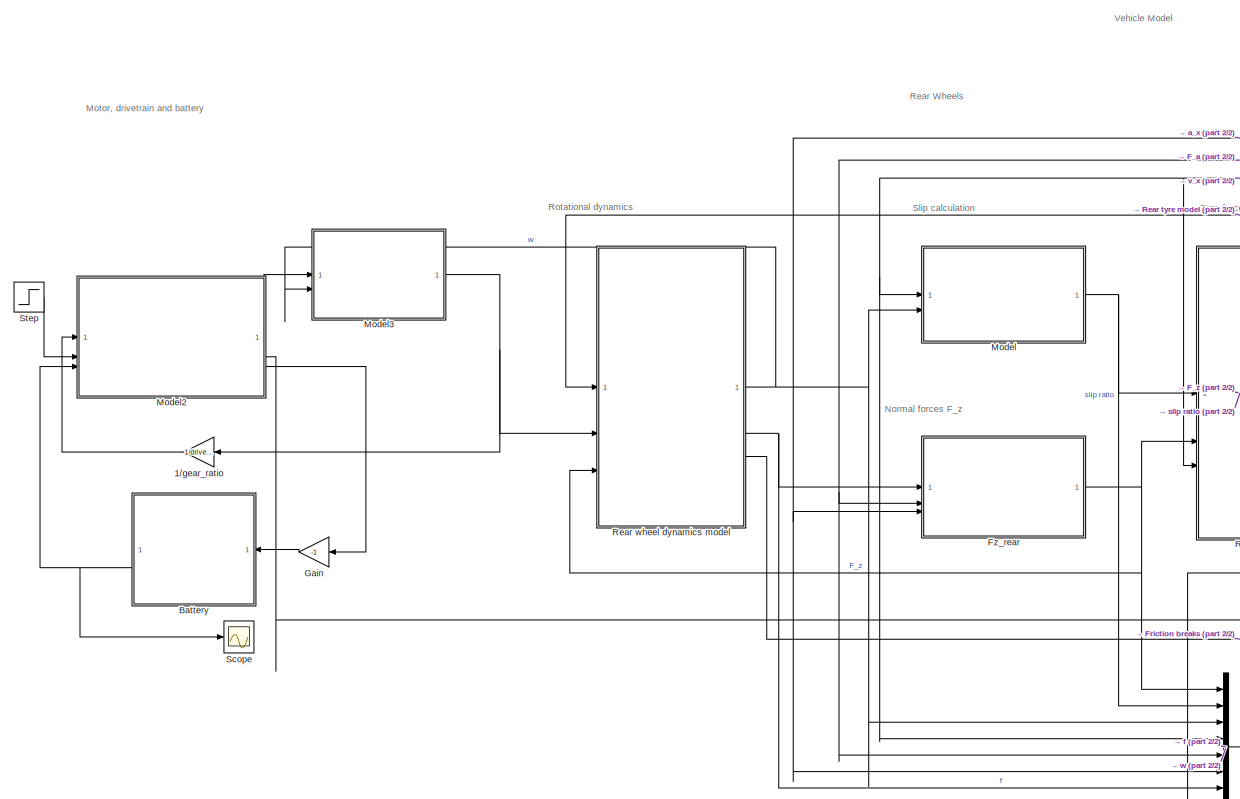
[diagram: root canvas - part 1/2, left side, full height]
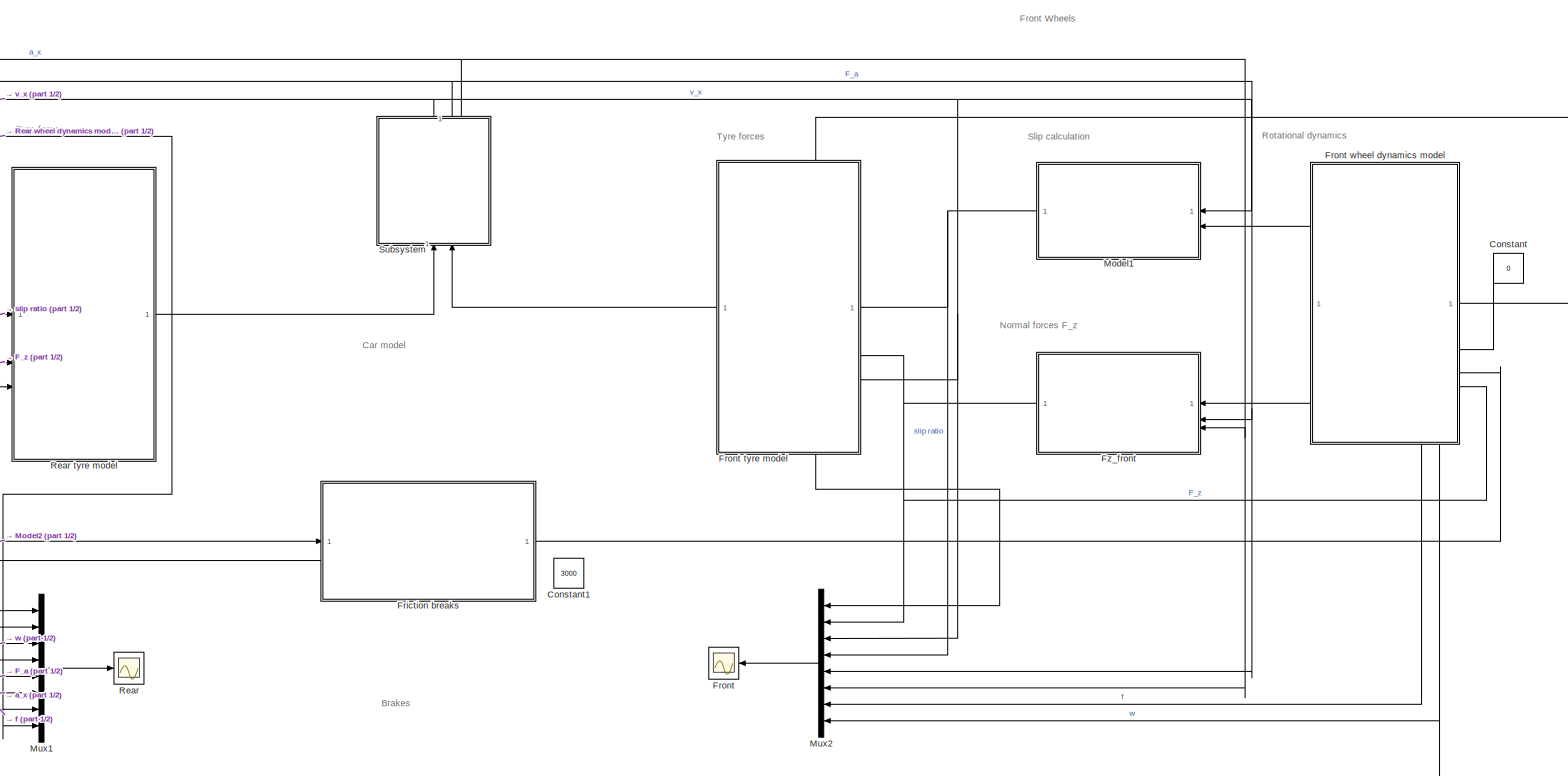
[diagram: root canvas - part 2/2, right side, full height]
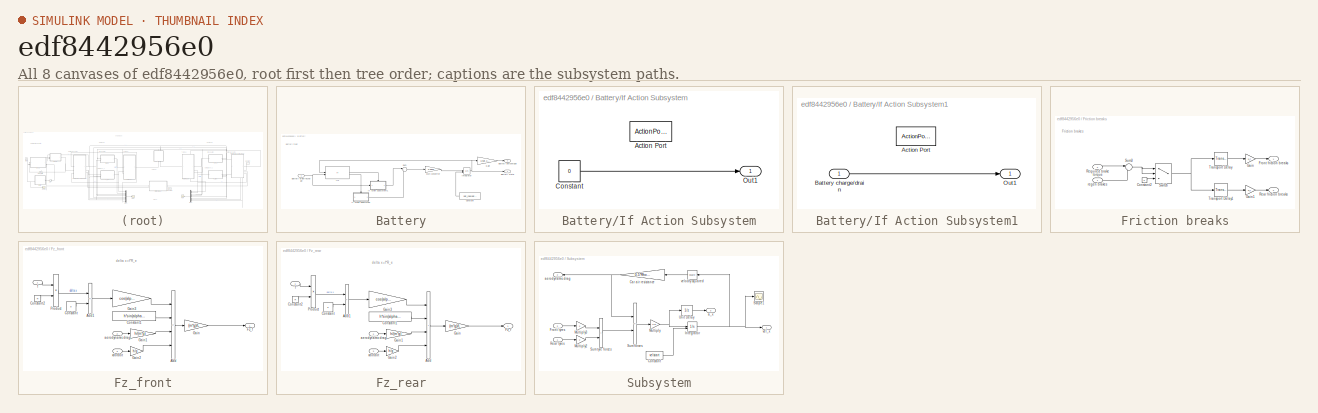
[diagram: thumbnail index - all 8 canvases of the model, root first then tree order]
MODEL slx_edf8442956e0
KIND model
CONFIG AbsTol = auto
CONFIG EnableMultiTasking = off
CONFIG FixedStep = auto
CONFIG MaxStep = 1e-4
CONFIG MinStep = auto
CONFIG RelTol = 1e-3
CONFIG SampleTimeConstraint = Unconstrained
CONFIG SolverName = ode23t
CONFIG StartTime = 0.0
CONFIG StopTime = 60
BLOCK [Gain] 1//gear_ratio
  Gain = 1/drivetrain_gain
  NameLocation = top
BLOCK [SubSystem] Battery
  NameLocation = top
BLOCK [Inport] Battery/Battery drain//recharge
BLOCK [Outport] Battery/Battery percentage
  Port = 2
BLOCK [Outport] Battery/Battery state
BLOCK [Constant] Battery/Constant
  NameLocation = top
  Value = bat_cap*bat_per
BLOCK [Gain] Battery/Gain
  Gain = 1/bat_cap
BLOCK [SubSystem] Battery/If Action Subsystem
  TreatAsAtomicUnit = on
BLOCK [ActionPort] Battery/If Action Subsystem/Action Port
  ActionPortLabel = else
BLOCK [Constant] Battery/If Action Subsystem/Constant
  Value = 0
BLOCK [Outport] Battery/If Action Subsystem/Out1
BLOCK [SubSystem] Battery/If Action Subsystem1
  TreatAsAtomicUnit = on
BLOCK [ActionPort] Battery/If Action Subsystem1/Action Port
  ActionPortLabel = if((u1 <= 0 & u2 >= 0) | (u1 >= 0 & u2<= bat_cap))
BLOCK [Inport] Battery/If Action Subsystem1/Battery charge//drain
BLOCK [Outport] Battery/If Action Subsystem1/Out1
BLOCK [If] Battery/If1
  IfExpression = (u1 <= 0 & u2 >= 0) | (u1 >= 0 & u2<= bat_cap)
  NumInputs = 2
BLOCK [Integrator] Battery/Integrator
  InitialConditionSource = external
BLOCK [Sum] Battery/Sum
  Inputs = |++
BLOCK [Gain] Battery/kWh converter
  Gain = 1/3600
BLOCK [Constant] Constant
  NameLocation = top
  Value = 0
BLOCK [Constant] Constant1
  NameLocation = top
  Value = 3000
BLOCK [SubSystem] Friction breaks
  PortSchema = {"entries":[{"content":{"sides":[{"content":{"connectorIds":["Out2","In1"]},"type":"ConnectorPlacement.EquallySpacedRectSide","uuid":"4a3dc718-d1bd-449b-9739-5f6ec97173fd"},{"content":{"connectorIds":["Out1","In2"],"side":"RIGHT"},"type":"ConnectorPlacement.EquallySpacedRectSide","uuid":"f113ab5a-fdc2-44b8-a57e-3f1ebdb36388"},{"content":{"side":"TOP"},"type":"ConnectorPlacement.EquallySpacedRectSi...<+361ch>
BLOCK [Constant] Friction breaks/Constant2
  Value = 0
BLOCK [Outport] Friction breaks/Front friction breaks
BLOCK [Gain] Friction breaks/Gain
  Gain = b_f
BLOCK [Gain] Friction breaks/Gain1
  Gain = b_r
BLOCK [Outport] Friction breaks/Rear friction breaks
  Port = 2
BLOCK [Inport] Friction breaks/Required brake torque
  Port = 2
BLOCK [Sum] Friction breaks/Sum3
  Inputs = |+-
BLOCK [Switch] Friction breaks/Switch
  Criteria = u2 > Threshold
  InputSameDT = off
  SaturateOnIntegerOverflow = off
BLOCK [TransportDelay] Friction breaks/Transport Delay
  DelayTime = tau_b
BLOCK [TransportDelay] Friction breaks/Transport Delay1
  DelayTime = tau_b
BLOCK [Inport] Friction breaks/regen brakes
BLOCK [Scope] Front
  Floating = off
  NumInputPorts = 1
  ScopeSpecificationString = Simulink.scopes.TimeScopeBlockCfg('CurrentConfiguration', extmgr.ConfigurationSet(extmgr.Configuration('Core','General UI',true),extmgr.Configuration('Core','Source UI',true),extmgr.Configuration('Sources','WiredSimulink',true,'DataLoggingVariableName','ScopeData1'),extmgr.Configuration('Visuals','Time Domain',true,'SerializedDisplays',{struct('MinYLimReal','-10.36243','MaxYLimReal','71.52717','YL...<+1807ch>
BLOCK [ModelReference] Front tyre model
  ModelNameDialog = Tyre_Pac96.slx
  ModelReferenceVersion = 9.39
  PortSchema = {"entries":[{"content":{"sides":[{"content":{"connectorIds":["In2","In3","In1"]},"type":"ConnectorPlacement.EquallySpacedRectSide","uuid":"128c3a03-d455-473f-b97a-1271ed5e183e"},{"content":{"connectorIds":["Out1"],"side":"RIGHT"},"type":"ConnectorPlacement.EquallySpacedRectSide","uuid":"90c93895-2958-47ec-b7e2-2fd8dd55f75c"},{"content":{"side":"TOP"},"type":"ConnectorPlacement.EquallySpacedRectSid...<+234ch>
BLOCK [ModelReference] Front wheel dynamics model
  ModelNameDialog = rotational_wheel_dynamics.slx
  ModelReferenceVersion = 1.106
  PortSchema = {"entries":[{"content":{"sides":[{"content":{"connectorIds":["In4","In3","In2","In1"]},"type":"ConnectorPlacement.EquallySpacedRectSide","uuid":"8e9cd13c-7748-4dfa-a955-38f4d392920c"},{"content":{"connectorIds":["Out2","Out1"],"side":"RIGHT"},"type":"ConnectorPlacement.EquallySpacedRectSide","uuid":"81e5c474-d9e1-4061-825c-d1a8c8e14901"},{"content":{"side":"TOP"},"type":"ConnectorPlacement.Equally...<+247ch>
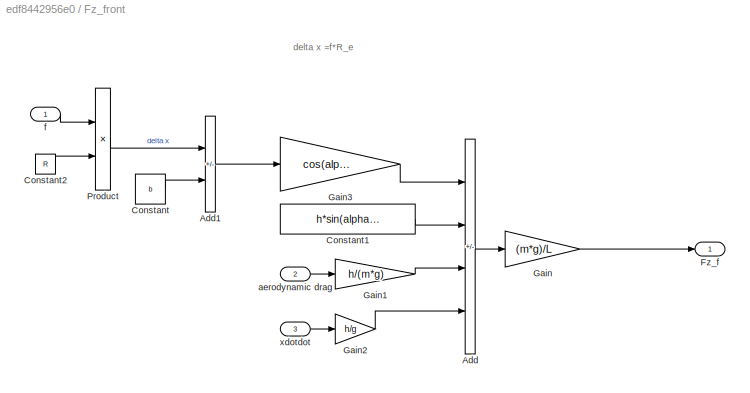
BLOCK [SubSystem] Fz_front
BLOCK [Sum] Fz_front/Add
  IconShape = rectangular
  Inputs = +---
BLOCK [Sum] Fz_front/Add1
  IconShape = rectangular
  Inputs = -+
BLOCK [Constant] Fz_front/Constant
  Value = b
BLOCK [Constant] Fz_front/Constant1
  Value = h*sin(alpha_slope)
BLOCK [Constant] Fz_front/Constant2
  Value = R
BLOCK [Outport] Fz_front/Fz_f
BLOCK [Gain] Fz_front/Gain
  Gain = (m*g)/L
BLOCK [Gain] Fz_front/Gain1
  Gain = h/(m*g)
BLOCK [Gain] Fz_front/Gain2
  Gain = h/g
BLOCK [Gain] Fz_front/Gain3
  Gain = cos(alpha_slope)
BLOCK [Product] Fz_front/Product
BLOCK [Inport] Fz_front/aerodynamic drag
  Port = 2
BLOCK [Inport] Fz_front/f
BLOCK [Inport] Fz_front/xdotdot
  Port = 3
BLOCK [SubSystem] Fz_rear
BLOCK [Sum] Fz_rear/Add
  IconShape = rectangular
  Inputs = ++++
BLOCK [Sum] Fz_rear/Add1
  IconShape = rectangular
BLOCK [Constant] Fz_rear/Constant
  Value = a
BLOCK [Constant] Fz_rear/Constant1
  Value = h*sin(alpha_slope)
BLOCK [Constant] Fz_rear/Constant2
  Value = R
BLOCK [Outport] Fz_rear/Fz_r
BLOCK [Gain] Fz_rear/Gain
  Gain = (m*g)/L
BLOCK [Gain] Fz_rear/Gain1
  Gain = h/(m*g)
BLOCK [Gain] Fz_rear/Gain2
  Gain = h/g
BLOCK [Gain] Fz_rear/Gain3
  Gain = cos(alpha_slope)
BLOCK [Product] Fz_rear/Product
BLOCK [Inport] Fz_rear/aerodynamic drag
  Port = 2
BLOCK [Inport] Fz_rear/f
BLOCK [Inport] Fz_rear/xdotdot
  Port = 3
BLOCK [Gain] Gain
  Gain = -1
  NameLocation = top
BLOCK [ModelReference] Model
  ModelNameDialog = slip_calc.slx
  ModelReferenceVersion = 1.56
BLOCK [ModelReference] Model1
  ModelNameDialog = slip_calc.slx
  ModelReferenceVersion = 1.56
  NameLocation = top
BLOCK [ModelReference] Model2
  ModelNameDialog = DC_motor.slx
  ModelReferenceVersion = 1.26
  PortSchema = {"entries":[{"content":{"sides":[{"content":{"connectorIds":["In2","In1","In3"]},"type":"ConnectorPlacement.EquallySpacedRectSide","uuid":"856ebdf3-b7b7-417f-9858-b4eab560afbe"},{"content":{"connectorIds":["Out1","Out2","Out3"],"side":"RIGHT"},"type":"ConnectorPlacement.EquallySpacedRectSide","uuid":"02573abb-4d18-4489-95c0-3c3e8424dddb"},{"content":{"side":"TOP"},"type":"ConnectorPlacement.Equall...<+248ch>
BLOCK [ModelReference] Model3
  ModelNameDialog = half_shaft.slx
  ModelReferenceVersion = 1.9
  PortSchema = {"entries":[{"content":{"sides":[{"content":{"connectorIds":["In2","In1"]},"type":"ConnectorPlacement.EquallySpacedRectSide","uuid":"2a87acde-a3e3-446f-b760-192272679fdf"},{"content":{"connectorIds":["Out1"],"side":"RIGHT"},"type":"ConnectorPlacement.EquallySpacedRectSide","uuid":"34dfae4c-dee8-4eab-a373-6b1516b3930c"},{"content":{"side":"TOP"},"type":"ConnectorPlacement.EquallySpacedRectSide","uu...<+228ch>
BLOCK [Mux] Mux1
  DisplayOption = bar
  Inputs = 8
BLOCK [Mux] Mux2
  DisplayOption = bar
  Inputs = 8
  NameLocation = top
BLOCK [Scope] Rear
  Floating = off
  NumInputPorts = 1
  ScopeSpecificationString = Simulink.scopes.TimeScopeBlockCfg('CurrentConfiguration', extmgr.ConfigurationSet(extmgr.Configuration('Core','General UI',true),extmgr.Configuration('Core','Source UI',true),extmgr.Configuration('Sources','WiredSimulink',true,'DataLoggingVariableName','ScopeData2'),extmgr.Configuration('Visuals','Time Domain',true,'SerializedDisplays',{struct('MinYLimReal','-1.03631','MaxYLimReal','46.82075','YLa...<+1809ch>
BLOCK [ModelReference] Rear tyre model
  ModelNameDialog = Tyre_Pac96.slx
  ModelReferenceVersion = 9.39
  PortSchema = {"entries":[{"content":{"sides":[{"content":{"connectorIds":["In1","In3","In2"]},"type":"ConnectorPlacement.EquallySpacedRectSide","uuid":"128c3a03-d455-473f-b97a-1271ed5e183e"},{"content":{"connectorIds":["Out1"],"side":"RIGHT"},"type":"ConnectorPlacement.EquallySpacedRectSide","uuid":"90c93895-2958-47ec-b7e2-2fd8dd55f75c"},{"content":{"side":"TOP"},"type":"ConnectorPlacement.EquallySpacedRectSid...<+234ch>
BLOCK [ModelReference] Rear wheel dynamics model
  ModelNameDialog = rotational_wheel_dynamics.slx
  ModelReferenceVersion = 1.106
BLOCK [Scope] Scope
  Floating = off
  NumInputPorts = 1
  ScopeSpecificationString = Simulink.scopes.TimeScopeBlockCfg('CurrentConfiguration', extmgr.ConfigurationSet(extmgr.Configuration('Core','General UI',true),extmgr.Configuration('Core','Source UI',true),extmgr.Configuration('Sources','WiredSimulink',true,'DataLoggingVariableName','ScopeData1'),extmgr.Configuration('Visuals','Time Domain',true,'SerializedDisplays',{struct('MinYLimReal','0.98431','MaxYLimReal','1.00174','YLabe...<+1455ch>
BLOCK [Step] Step
  After = 0
  Before = 400
  SampleTime = 0
  Time = 200
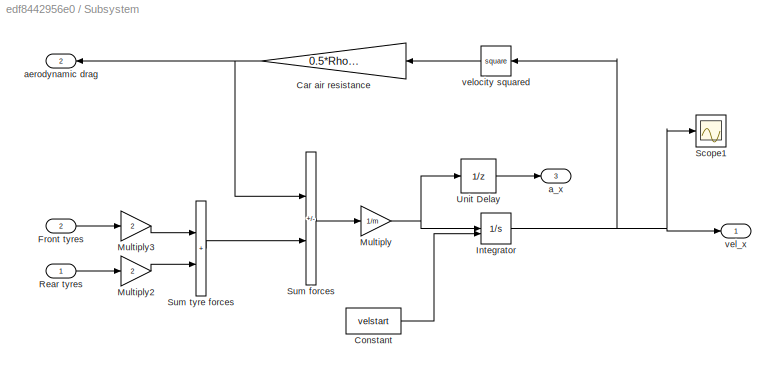
BLOCK [SubSystem] Subsystem
  NameLocation = right
BLOCK [Gain] Subsystem/Car air resistance
  Gain = 0.5*Rho*Cx*Af
  NameLocation = top
BLOCK [Constant] Subsystem/Constant
  Value = velstart
BLOCK [Inport] Subsystem/Front tyres
  Port = 2
BLOCK [Integrator] Subsystem/Integrator
  InitialConditionSource = external
BLOCK [Gain] Subsystem/Multiply
  Gain = 1/m
BLOCK [Gain] Subsystem/Multiply2
  Gain = 2
BLOCK [Gain] Subsystem/Multiply3
  Gain = 2
BLOCK [Inport] Subsystem/Rear tyres
BLOCK [Scope] Subsystem/Scope1
  Floating = off
  NumInputPorts = 1
  ScopeSpecificationString = Simulink.scopes.TimeScopeBlockCfg('CurrentConfiguration', extmgr.ConfigurationSet(extmgr.Configuration('Core','General UI',true),extmgr.Configuration('Core','Source UI',true),extmgr.Configuration('Sources','WiredSimulink',true,'DataLoggingVariableName','ScopeData1'),extmgr.Configuration('Visuals','Time Domain',true,'SerializedDisplays',{struct('MinYLimReal','1.61275','MaxYLimReal','3.15414','YLabe...<+1456ch>
BLOCK [Sum] Subsystem/Sum forces
  IconShape = rectangular
  Inputs = -+
BLOCK [Sum] Subsystem/Sum tyre forces
  IconShape = rectangular
BLOCK [UnitDelay] Subsystem/Unit Delay
  HasFrameUpgradeWarning = on
  SampleTime = -1
BLOCK [Outport] Subsystem/a_x
  Port = 3
BLOCK [Outport] Subsystem/aerodynamic drag
  NameLocation = top
  Port = 2
BLOCK [Outport] Subsystem/vel_x
BLOCK [Math] Subsystem/velocity squared
  NameLocation = top
  Operator = square
  RndMeth = Zero
  SignedPower = on
ANNOTATION (root): Normal forces F_z
ANNOTATION (root): Rotational dynamics
ANNOTATION (root): Car model
ANNOTATION (root): Slip calculation
ANNOTATION (root): Tyre forces
ANNOTATION (root): Brakes
ANNOTATION (root): Front Wheels
ANNOTATION (root): Motor, drivetrain and battery
ANNOTATION (root): Rear Wheels
ANNOTATION (root): Vehicle Model
ANNOTATION Battery: Battery itself
ANNOTATION Friction breaks: Friction brakes
ANNOTATION Fz_front: delta x =f*R_e
ANNOTATION Fz_rear: delta x =f*R_e
LINE 1//gear_ratio:1 -> Model2:1
NET Battery/Battery drain//recharge:1 -> Battery/If Action Subsystem1:1, Battery/If1:2
LINE Battery/Constant:1 -> Battery/Integrator:2
LINE Battery/Gain:1 -> Battery/Battery percentage:1
LINE Battery/If Action Subsystem/Constant:1 -> Battery/If Action Subsystem/Out1:1
LINE Battery/If Action Subsystem1/Battery charge//drain:1 -> Battery/If Action Subsystem1/Out1:1
LINE Battery/If Action Subsystem1:1 -> Battery/Sum:1
LINE Battery/If Action Subsystem:1 -> Battery/Sum:2
LINE Battery/If1:1 -> Battery/If Action Subsystem1:ifaction
LINE Battery/If1:2 -> Battery/If Action Subsystem:ifaction
NET Battery/Integrator:1 -> Battery/Battery state:1, Battery/Gain:1, Battery/If1:1
LINE Battery/Sum:1 -> Battery/kWh converter:1
LINE Battery/kWh converter:1 -> Battery/Integrator:1
NET Battery:2 -> Model2:3, Scope:1
LINE Constant:1 -> Front wheel dynamics model:2
LINE Friction breaks/Constant2:1 -> Friction breaks/Switch:3
LINE Friction breaks/Gain1:1 -> Friction breaks/Rear friction breaks:1
LINE Friction breaks/Gain:1 -> Friction breaks/Front friction breaks:1
LINE Friction breaks/Required brake torque:1 -> Friction breaks/Sum3:1
NET Friction breaks/Sum3:1 -> Friction breaks/Switch:1, Friction breaks/Switch:2
NET Friction breaks/Switch:1 -> Friction breaks/Transport Delay1:1, Friction breaks/Transport Delay:1
LINE Friction breaks/Transport Delay1:1 -> Friction breaks/Gain1:1
LINE Friction breaks/Transport Delay:1 -> Friction breaks/Gain:1
LINE Friction breaks/regen brakes:1 -> Friction breaks/Sum3:2
LINE Friction breaks:1 -> Front wheel dynamics model:3
LINE Friction breaks:2 -> Rear wheel dynamics model:3
NET Front tyre model:1 -> Front wheel dynamics model:1, Mux2:1, Subsystem:2
NET Front wheel dynamics model:1 -> Model1:2, Mux2:8
NET Front wheel dynamics model:2 -> Fz_front:1, Mux2:7
LINE Fz_front/Add1:1 -> Fz_front/Gain3:1
LINE Fz_front/Add:1 -> Fz_front/Gain:1
LINE Fz_front/Constant1:1 -> Fz_front/Add:2
LINE Fz_front/Constant2:1 -> Fz_front/Product:2
LINE Fz_front/Constant:1 -> Fz_front/Add1:2
LINE Fz_front/Gain1:1 -> Fz_front/Add:3
LINE Fz_front/Gain2:1 -> Fz_front/Add:4
LINE Fz_front/Gain3:1 -> Fz_front/Add:1
LINE Fz_front/Gain:1 -> Fz_front/Fz_f:1
LINE Fz_front/Product:1 -> Fz_front/Add1:1
LINE Fz_front/aerodynamic drag:1 -> Fz_front/Gain1:1
LINE Fz_front/f:1 -> Fz_front/Product:1
LINE Fz_front/xdotdot:1 -> Fz_front/Gain2:1
NET Fz_front:1 -> Front tyre model:2, Front wheel dynamics model:4, Mux2:2
LINE Fz_rear/Add1:1 -> Fz_rear/Gain3:1
LINE Fz_rear/Add:1 -> Fz_rear/Gain:1
LINE Fz_rear/Constant1:1 -> Fz_rear/Add:2
LINE Fz_rear/Constant2:1 -> Fz_rear/Product:2
LINE Fz_rear/Constant:1 -> Fz_rear/Add1:2
LINE Fz_rear/Gain1:1 -> Fz_rear/Add:3
LINE Fz_rear/Gain2:1 -> Fz_rear/Add:4
LINE Fz_rear/Gain3:1 -> Fz_rear/Add:1
LINE Fz_rear/Gain:1 -> Fz_rear/Fz_r:1
LINE Fz_rear/Product:1 -> Fz_rear/Add1:1
LINE Fz_rear/aerodynamic drag:1 -> Fz_rear/Gain1:1
LINE Fz_rear/f:1 -> Fz_rear/Product:1
LINE Fz_rear/xdotdot:1 -> Fz_rear/Gain2:1
NET Fz_rear:1 -> Mux1:1, Rear tyre model:2, Rear wheel dynamics model:4
LINE Gain:1 -> Battery:1
NET Model1:1 -> Front tyre model:1, Mux2:4
LINE Model2:1 -> Model3:1
LINE Model2:2 -> Friction breaks:1
LINE Model2:3 -> Gain:1
NET Model3:1 -> 1//gear_ratio:1, Rear wheel dynamics model:2
NET Model:1 -> Mux1:2, Rear tyre model:1
LINE Mux1:1 -> Rear:1
LINE Mux2:1 -> Front:1
NET Rear tyre model:1 -> Mux1:8, Rear wheel dynamics model:1, Subsystem:1
NET Rear wheel dynamics model:1 -> Model3:2, Model:2, Mux1:3
NET Rear wheel dynamics model:2 -> Fz_rear:1, Mux1:7
LINE Step:1 -> Model2:2
NET Subsystem/Car air resistance:1 -> Subsystem/Sum forces:1, Subsystem/aerodynamic drag:1
LINE Subsystem/Constant:1 -> Subsystem/Integrator:2
LINE Subsystem/Front tyres:1 -> Subsystem/Multiply3:1
NET Subsystem/Integrator:1 -> Subsystem/Scope1:1, Subsystem/vel_x:1, Subsystem/velocity squared:1
LINE Subsystem/Multiply2:1 -> Subsystem/Sum tyre forces:2
LINE Subsystem/Multiply3:1 -> Subsystem/Sum tyre forces:1
NET Subsystem/Multiply:1 -> Subsystem/Integrator:1, Subsystem/Unit Delay:1
LINE Subsystem/Rear tyres:1 -> Subsystem/Multiply2:1
LINE Subsystem/Sum forces:1 -> Subsystem/Multiply:1
LINE Subsystem/Sum tyre forces:1 -> Subsystem/Sum forces:2
LINE Subsystem/Unit Delay:1 -> Subsystem/a_x:1
LINE Subsystem/velocity squared:1 -> Subsystem/Car air resistance:1
NET Subsystem:1 -> Front tyre model:3, Model1:1, Model:1, Mux1:4, Mux2:3, Rear tyre model:3
NET Subsystem:2 -> Fz_front:2, Fz_rear:2, Mux1:5, Mux2:5
NET Subsystem:3 -> Fz_front:3, Fz_rear:3, Mux1:6, Mux2:6
note: NET lines group one-source signal fan-out (src -> all destinations, sorted); 1:1 wires keep LINE
